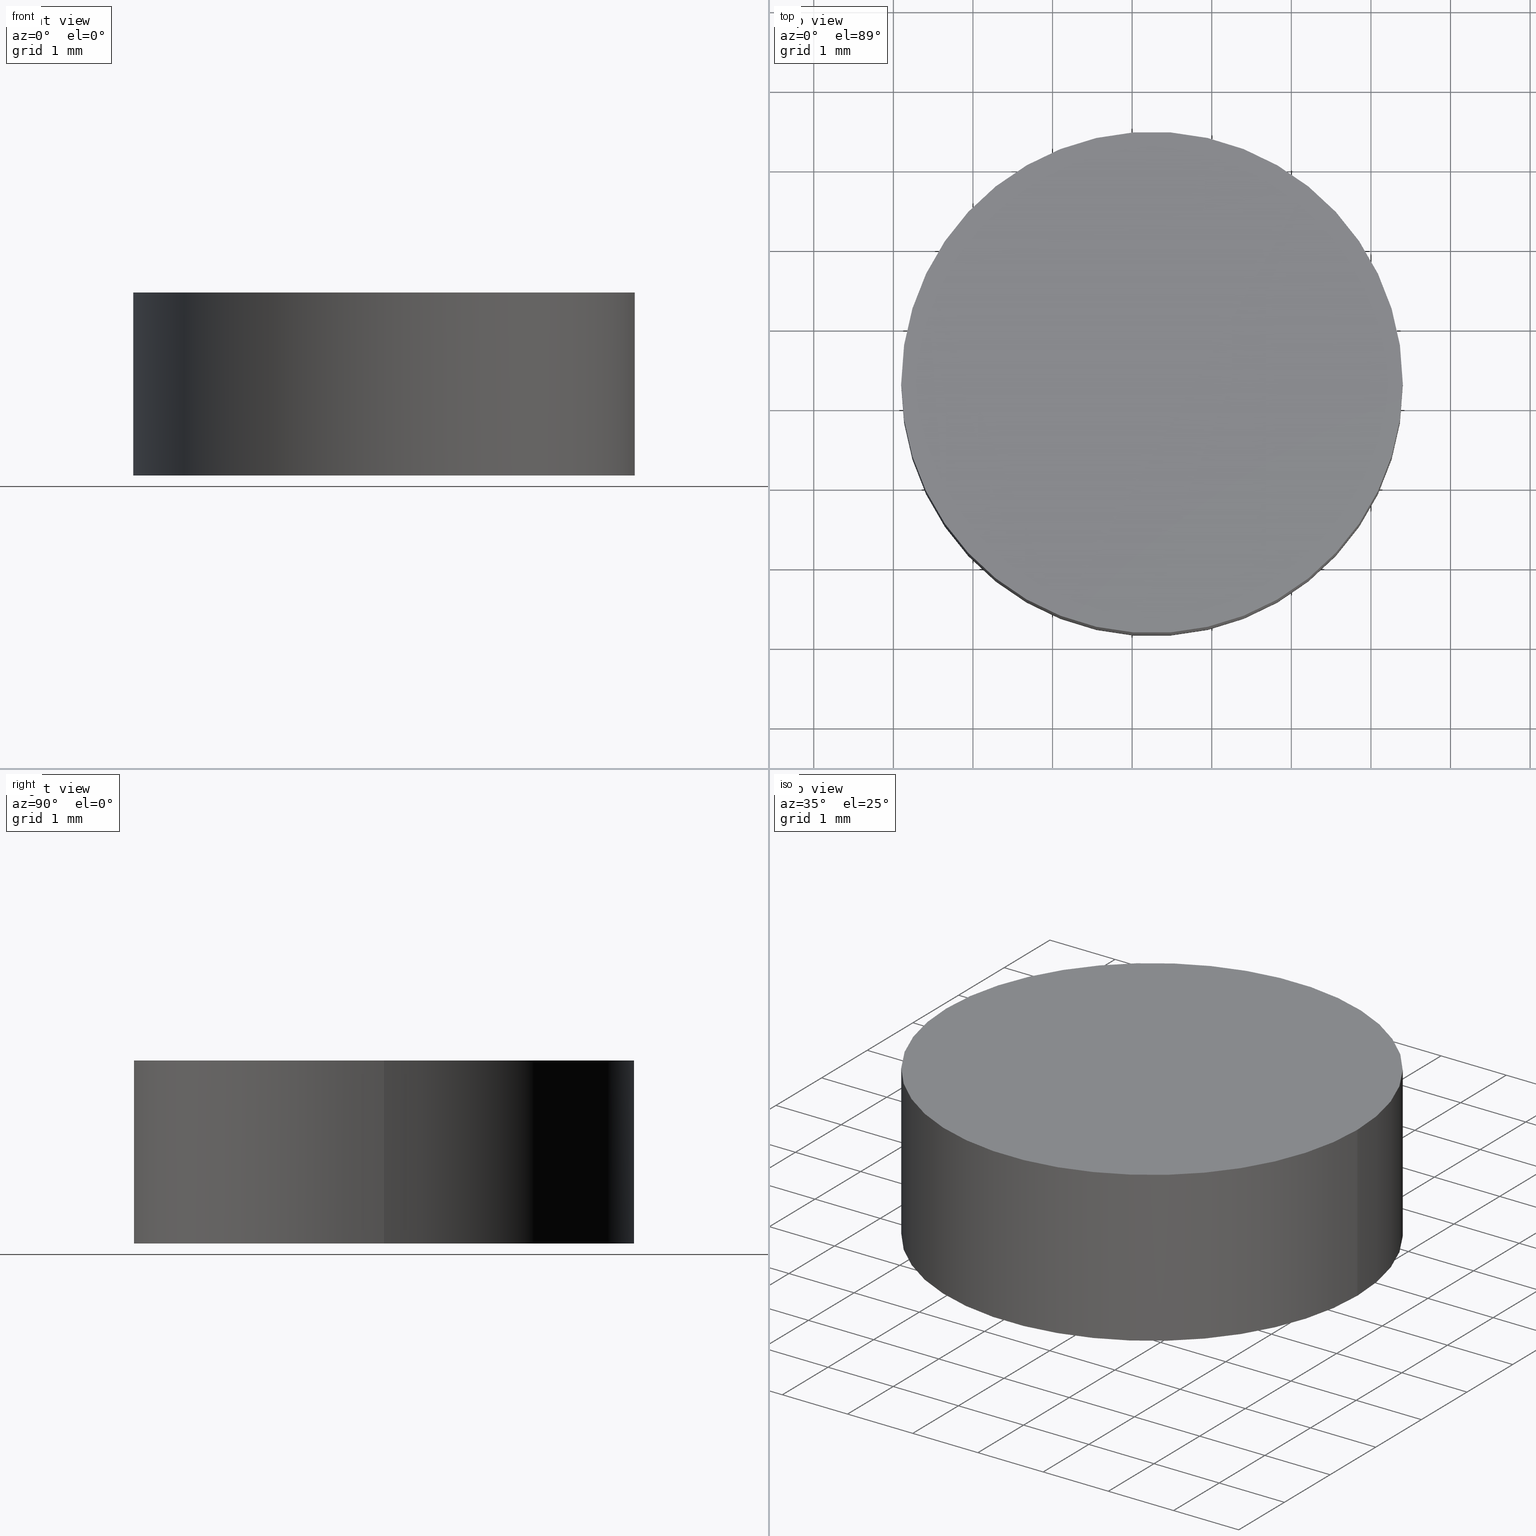
[diagram: canonical four-view strip — front | top / right | iso, engineering-drawing reading convention]
A machine part, canonical four-view strip (front | top / right | iso — engineering-drawing reading convention). The complete STEP part file that produces these views, byte-faithful:
ISO-10303-21;
HEADER;
FILE_DESCRIPTION (( 'STEP AP214' ),
    '1' );
FILE_NAME ('302501.STEP',
    '2019-08-13T02:39:40',
    ( '' ),
    ( '' ),
    'SwSTEP 2.0',
    'SolidWorks 2016',
    '' );
FILE_SCHEMA (( 'AUTOMOTIVE_DESIGN' ));
ENDSEC;

DATA;
#1 = VERTEX_POINT ( 'NONE', #2 ) ;
#2 = CARTESIAN_POINT ( 'NONE',  ( 23.39958715517702000, 12.31264836690532000, 0.0000000000000000000 ) ) ;
#3 = DIRECTION ( 'NONE',  ( 1.000000000000000000, 0.0000000000000000000, 0.0000000000000000000 ) ) ;
#4 = DIRECTION ( 'NONE',  ( -1.000000000000000000, 0.0000000000000000000, 0.0000000000000000000 ) ) ;
#5 =( LENGTH_UNIT ( ) NAMED_UNIT ( * ) SI_UNIT ( .MILLI., .METRE. ) );
#6 = FACE_OUTER_BOUND ( 'NONE', #121, .T. ) ;
#7 = PLANE ( 'NONE',  #61 ) ;
#8 = ADVANCED_BREP_SHAPE_REPRESENTATION ( '302501', ( #109, #62 ), #71 ) ;
#9 = PRODUCT_DEFINITION ( 'δ֪', '', #99, #84 ) ;
#10 = FACE_OUTER_BOUND ( 'NONE', #80, .T. ) ;
#11 = PLANE ( 'NONE',  #91 ) ;
#12 = EDGE_CURVE ( 'NONE', #27, #1, #74, .T. ) ;
#13 = SURFACE_STYLE_USAGE ( .BOTH. , #124 ) ;
#14 = ORIENTED_EDGE ( 'NONE', *, *, #105, .F. ) ;
#15 = FACE_OUTER_BOUND ( 'NONE', #89, .T. ) ;
#16 =( LENGTH_UNIT ( ) NAMED_UNIT ( * ) SI_UNIT ( .MILLI., .METRE. ) );
#17 = DIRECTION ( 'NONE',  ( 1.000000000000000000, 0.0000000000000000000, -0.0000000000000000000 ) ) ;
#18 = ADVANCED_FACE ( 'NONE', ( #10 ), #11, .F. ) ;
#19 = EDGE_CURVE ( 'NONE', #54, #27, #53, .T. ) ;
#20 = ORIENTED_EDGE ( 'NONE', *, *, #19, .F. ) ;
#21 = DIRECTION ( 'NONE',  ( -0.0000000000000000000, -0.0000000000000000000, -1.000000000000000000 ) ) ;
#22 = CARTESIAN_POINT ( 'NONE',  ( 20.24958715517702100, 12.31264836690532000, 2.299999999999999800 ) ) ;
#23 = CIRCLE ( 'NONE', #120, 3.149999999999999900 ) ;
#24 = DIRECTION ( 'NONE',  ( 0.0000000000000000000, 0.0000000000000000000, 1.000000000000000000 ) ) ;
#25 = APPLICATION_CONTEXT ( 'automotive_design' ) ;
#26 = CARTESIAN_POINT ( 'NONE',  ( 23.39958715517702000, 12.31264836690532000, 2.299999999999999800 ) ) ;
#27 = VERTEX_POINT ( 'NONE', #131 ) ;
#28 = COLOUR_RGB ( '',1.000000000000000000, 1.000000000000000000, 1.000000000000000000 ) ;
#29 = EDGE_CURVE ( 'NONE', #129, #54, #23, .T. ) ;
#30 = SURFACE_STYLE_FILL_AREA ( #58 ) ;
#31 = UNCERTAINTY_MEASURE_WITH_UNIT (LENGTH_MEASURE( 1.000000000000000100E-005 ), #16, 'distance_accuracy_value', 'NONE');
#32 = DIRECTION ( 'NONE',  ( -0.0000000000000000000, -0.0000000000000000000, -1.000000000000000000 ) ) ;
#33 = VECTOR ( 'NONE', #21, 1000.000000000000000 ) ;
#34 = DIRECTION ( 'NONE',  ( 1.000000000000000000, 0.0000000000000000000, 0.0000000000000000000 ) ) ;
#35 = AXIS2_PLACEMENT_3D ( 'NONE', #123, #113, #136 ) ;
#36 = CARTESIAN_POINT ( 'NONE',  ( 20.24958715517702100, 12.31264836690532000, 2.299999999999999800 ) ) ;
#37 = CARTESIAN_POINT ( 'NONE',  ( 20.24958715517702100, 12.31264836690532000, 2.299999999999999800 ) ) ;
#38 = FILL_AREA_STYLE_COLOUR ( '', #28 ) ;
#39 = ORIENTED_EDGE ( 'NONE', *, *, #29, .F. ) ;
#40 = ORIENTED_EDGE ( 'NONE', *, *, #119, .F. ) ;
#41 = PRODUCT ( '302501', '302501', '', ( #116 ) ) ;
#42 = CIRCLE ( 'NONE', #128, 3.149999999999999900 ) ;
#43 = AXIS2_PLACEMENT_3D ( 'NONE', #112, #32, #4 ) ;
#44 = UNCERTAINTY_MEASURE_WITH_UNIT (LENGTH_MEASURE( 1.000000000000000100E-005 ), #115, 'distance_accuracy_value', 'NONE');
#45 = ORIENTED_EDGE ( 'NONE', *, *, #105, .T. ) ;
#46 = CARTESIAN_POINT ( 'NONE',  ( 17.09958715517701900, 12.31264836690532000, 2.299999999999999800 ) ) ;
#47 = CARTESIAN_POINT ( 'NONE',  ( 20.24958715517702100, 12.31264836690532000, 2.299999999999999800 ) ) ;
#48 = PRESENTATION_STYLE_ASSIGNMENT (( #78 ) ) ;
#49 = FILL_AREA_STYLE_COLOUR ( '', #137 ) ;
#50 = FACE_OUTER_BOUND ( 'NONE', #133, .T. ) ;
#51 = STYLED_ITEM ( 'NONE', ( #48 ), #109 ) ;
#52 =( GEOMETRIC_REPRESENTATION_CONTEXT ( 3 ) GLOBAL_UNCERTAINTY_ASSIGNED_CONTEXT ( ( #31 ) ) GLOBAL_UNIT_ASSIGNED_CONTEXT ( ( #16, #56, #118 ) ) REPRESENTATION_CONTEXT ( 'NONE', 'WORKASPACE' ) );
#53 = LINE ( 'NONE', #46, #111 ) ;
#54 = VERTEX_POINT ( 'NONE', #65 ) ;
#55 = PRESENTATION_LAYER_ASSIGNMENT (  '', '', ( #51 ) ) ;
#56 =( NAMED_UNIT ( * ) PLANE_ANGLE_UNIT ( ) SI_UNIT ( $, .RADIAN. ) );
#57 =( GEOMETRIC_REPRESENTATION_CONTEXT ( 3 ) GLOBAL_UNCERTAINTY_ASSIGNED_CONTEXT ( ( #44 ) ) GLOBAL_UNIT_ASSIGNED_CONTEXT ( ( #115, #90, #134 ) ) REPRESENTATION_CONTEXT ( 'NONE', 'WORKASPACE' ) );
#58 = FILL_AREA_STYLE ('',( #38 ) ) ;
#59 = ADVANCED_FACE ( 'NONE', ( #15 ), #95, .T. ) ;
#60 = ORIENTED_EDGE ( 'NONE', *, *, #138, .T. ) ;
#61 = AXIS2_PLACEMENT_3D ( 'NONE', #47, #104, #17 ) ;
#62 = AXIS2_PLACEMENT_3D ( 'NONE', #101, #24, #88 ) ;
#63 = CLOSED_SHELL ( 'NONE', ( #59, #107, #139, #18 ) ) ;
#64 = CARTESIAN_POINT ( 'NONE',  ( 20.24958715517702100, 12.31264836690532000, 0.0000000000000000000 ) ) ;
#65 = CARTESIAN_POINT ( 'NONE',  ( 17.09958715517701900, 12.31264836690532000, 2.299999999999999800 ) ) ;
#66 = UNCERTAINTY_MEASURE_WITH_UNIT (LENGTH_MEASURE( 1.000000000000000100E-005 ), #5, 'distance_accuracy_value', 'NONE');
#67 = FILL_AREA_STYLE ('',( #49 ) ) ;
#68 = CYLINDRICAL_SURFACE ( 'NONE', #43, 3.149999999999999900 ) ;
#69 = APPLICATION_PROTOCOL_DEFINITION ( 'draft international standard', 'automotive_design', 1998, #127 ) ;
#70 = SURFACE_SIDE_STYLE ('',( #72 ) ) ;
#71 =( GEOMETRIC_REPRESENTATION_CONTEXT ( 3 ) GLOBAL_UNCERTAINTY_ASSIGNED_CONTEXT ( ( #66 ) ) GLOBAL_UNIT_ASSIGNED_CONTEXT ( ( #5, #132, #79 ) ) REPRESENTATION_CONTEXT ( 'NONE', 'WORKASPACE' ) );
#72 = SURFACE_STYLE_FILL_AREA ( #67 ) ;
#73 = MECHANICAL_DESIGN_GEOMETRIC_PRESENTATION_REPRESENTATION (  '', ( #51 ), #52 ) ;
#74 = CIRCLE ( 'NONE', #93, 3.149999999999999900 ) ;
#75 = ORIENTED_EDGE ( 'NONE', *, *, #12, .F. ) ;
#76 = STYLED_ITEM ( 'NONE', ( #98 ), #8 ) ;
#77 = DIRECTION ( 'NONE',  ( -0.0000000000000000000, -0.0000000000000000000, -1.000000000000000000 ) ) ;
#78 = SURFACE_STYLE_USAGE ( .BOTH. , #70 ) ;
#79 =( NAMED_UNIT ( * ) SI_UNIT ( $, .STERADIAN. ) SOLID_ANGLE_UNIT ( ) );
#80 = EDGE_LOOP ( 'NONE', ( #75, #126 ) ) ;
#81 = PRESENTATION_LAYER_ASSIGNMENT (  '', '', ( #76 ) ) ;
#82 = LINE ( 'NONE', #100, #33 ) ;
#83 = MECHANICAL_DESIGN_GEOMETRIC_PRESENTATION_REPRESENTATION (  '', ( #76 ), #57 ) ;
#84 = PRODUCT_DEFINITION_CONTEXT ( 'detailed design', #127, 'design' ) ;
#85 = DIRECTION ( 'NONE',  ( 1.000000000000000000, 0.0000000000000000000, -0.0000000000000000000 ) ) ;
#86 = CARTESIAN_POINT ( 'NONE',  ( 20.24958715517702100, 12.31264836690532000, 0.0000000000000000000 ) ) ;
#87 = DIRECTION ( 'NONE',  ( -1.000000000000000000, 0.0000000000000000000, 0.0000000000000000000 ) ) ;
#88 = DIRECTION ( 'NONE',  ( 1.000000000000000000, 0.0000000000000000000, 0.0000000000000000000 ) ) ;
#89 = EDGE_LOOP ( 'NONE', ( #39, #45, #60, #20 ) ) ;
#90 =( NAMED_UNIT ( * ) PLANE_ANGLE_UNIT ( ) SI_UNIT ( $, .RADIAN. ) );
#91 = AXIS2_PLACEMENT_3D ( 'NONE', #64, #122, #85 ) ;
#92 = ORIENTED_EDGE ( 'NONE', *, *, #19, .T. ) ;
#93 = AXIS2_PLACEMENT_3D ( 'NONE', #86, #97, #3 ) ;
#94 = SHAPE_DEFINITION_REPRESENTATION ( #106, #8 ) ;
#95 = CYLINDRICAL_SURFACE ( 'NONE', #114, 3.149999999999999900 ) ;
#96 = DIRECTION ( 'NONE',  ( 0.0000000000000000000, 0.0000000000000000000, 1.000000000000000000 ) ) ;
#97 = DIRECTION ( 'NONE',  ( 0.0000000000000000000, 0.0000000000000000000, 1.000000000000000000 ) ) ;
#98 = PRESENTATION_STYLE_ASSIGNMENT (( #13 ) ) ;
#99 = PRODUCT_DEFINITION_FORMATION_WITH_SPECIFIED_SOURCE ( '�κ�', '', #41, .NOT_KNOWN. ) ;
#100 = CARTESIAN_POINT ( 'NONE',  ( 23.39958715517702000, 12.31264836690532000, 2.299999999999999800 ) ) ;
#101 = CARTESIAN_POINT ( 'NONE',  ( 0.0000000000000000000, 0.0000000000000000000, 0.0000000000000000000 ) ) ;
#102 = ORIENTED_EDGE ( 'NONE', *, *, #29, .T. ) ;
#103 = APPLICATION_PROTOCOL_DEFINITION ( 'draft international standard', 'automotive_design', 1998, #25 ) ;
#104 = DIRECTION ( 'NONE',  ( 0.0000000000000000000, 0.0000000000000000000, 1.000000000000000000 ) ) ;
#105 = EDGE_CURVE ( 'NONE', #129, #1, #82, .T. ) ;
#106 = PRODUCT_DEFINITION_SHAPE ( 'NONE', 'NONE',  #9 ) ;
#107 = ADVANCED_FACE ( 'NONE', ( #6 ), #68, .T. ) ;
#108 = CIRCLE ( 'NONE', #35, 3.149999999999999900 ) ;
#109 = MANIFOLD_SOLID_BREP ( '͹̨-����1', #63 ) ;
#110 = DIRECTION ( 'NONE',  ( -0.0000000000000000000, -0.0000000000000000000, -1.000000000000000000 ) ) ;
#111 = VECTOR ( 'NONE', #110, 1000.000000000000000 ) ;
#112 = CARTESIAN_POINT ( 'NONE',  ( 20.24958715517702100, 12.31264836690532000, 2.299999999999999800 ) ) ;
#113 = DIRECTION ( 'NONE',  ( 0.0000000000000000000, 0.0000000000000000000, 1.000000000000000000 ) ) ;
#114 = AXIS2_PLACEMENT_3D ( 'NONE', #36, #77, #87 ) ;
#115 =( LENGTH_UNIT ( ) NAMED_UNIT ( * ) SI_UNIT ( .MILLI., .METRE. ) );
#116 = PRODUCT_CONTEXT ( 'NONE', #25, 'mechanical' ) ;
#117 = ORIENTED_EDGE ( 'NONE', *, *, #119, .T. ) ;
#118 =( NAMED_UNIT ( * ) SI_UNIT ( $, .STERADIAN. ) SOLID_ANGLE_UNIT ( ) );
#119 = EDGE_CURVE ( 'NONE', #54, #129, #42, .T. ) ;
#120 = AXIS2_PLACEMENT_3D ( 'NONE', #22, #96, #34 ) ;
#121 = EDGE_LOOP ( 'NONE', ( #14, #40, #92, #140 ) ) ;
#122 = DIRECTION ( 'NONE',  ( 0.0000000000000000000, 0.0000000000000000000, 1.000000000000000000 ) ) ;
#123 = CARTESIAN_POINT ( 'NONE',  ( 20.24958715517702100, 12.31264836690532000, 0.0000000000000000000 ) ) ;
#124 = SURFACE_SIDE_STYLE ('',( #30 ) ) ;
#125 = DIRECTION ( 'NONE',  ( 0.0000000000000000000, 0.0000000000000000000, 1.000000000000000000 ) ) ;
#126 = ORIENTED_EDGE ( 'NONE', *, *, #138, .F. ) ;
#127 = APPLICATION_CONTEXT ( 'automotive_design' ) ;
#128 = AXIS2_PLACEMENT_3D ( 'NONE', #37, #125, #135 ) ;
#129 = VERTEX_POINT ( 'NONE', #26 ) ;
#130 = PRODUCT_RELATED_PRODUCT_CATEGORY ( 'part', '', ( #41 ) ) ;
#131 = CARTESIAN_POINT ( 'NONE',  ( 17.09958715517701900, 12.31264836690532000, 0.0000000000000000000 ) ) ;
#132 =( NAMED_UNIT ( * ) PLANE_ANGLE_UNIT ( ) SI_UNIT ( $, .RADIAN. ) );
#133 = EDGE_LOOP ( 'NONE', ( #117, #102 ) ) ;
#134 =( NAMED_UNIT ( * ) SI_UNIT ( $, .STERADIAN. ) SOLID_ANGLE_UNIT ( ) );
#135 = DIRECTION ( 'NONE',  ( 1.000000000000000000, 0.0000000000000000000, 0.0000000000000000000 ) ) ;
#136 = DIRECTION ( 'NONE',  ( 1.000000000000000000, 0.0000000000000000000, 0.0000000000000000000 ) ) ;
#137 = COLOUR_RGB ( '',1.000000000000000000, 1.000000000000000000, 1.000000000000000000 ) ;
#138 = EDGE_CURVE ( 'NONE', #1, #27, #108, .T. ) ;
#139 = ADVANCED_FACE ( 'NONE', ( #50 ), #7, .T. ) ;
#140 = ORIENTED_EDGE ( 'NONE', *, *, #12, .T. ) ;
ENDSEC;
END-ISO-10303-21;
